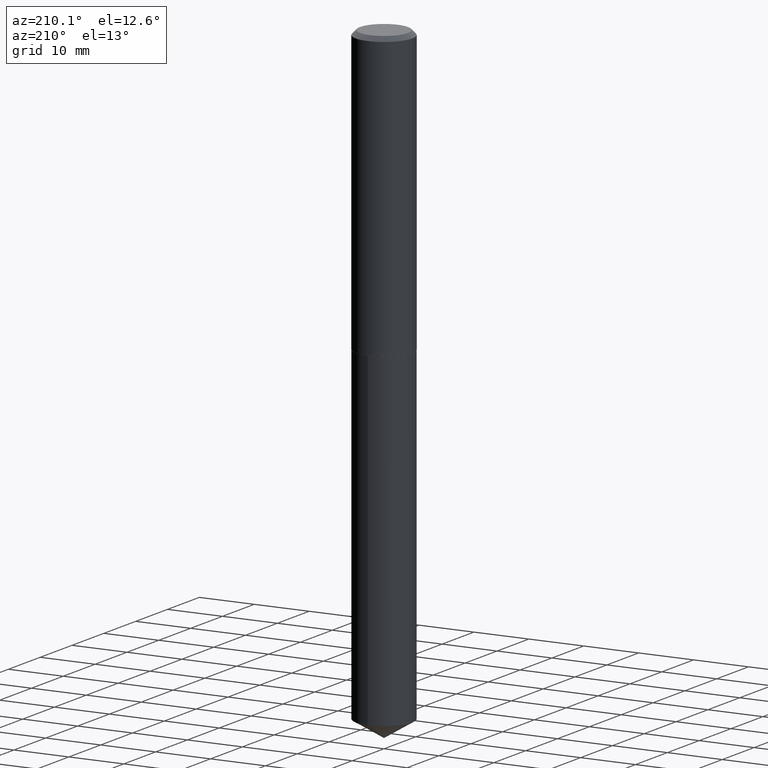
[diagram: clean part render]
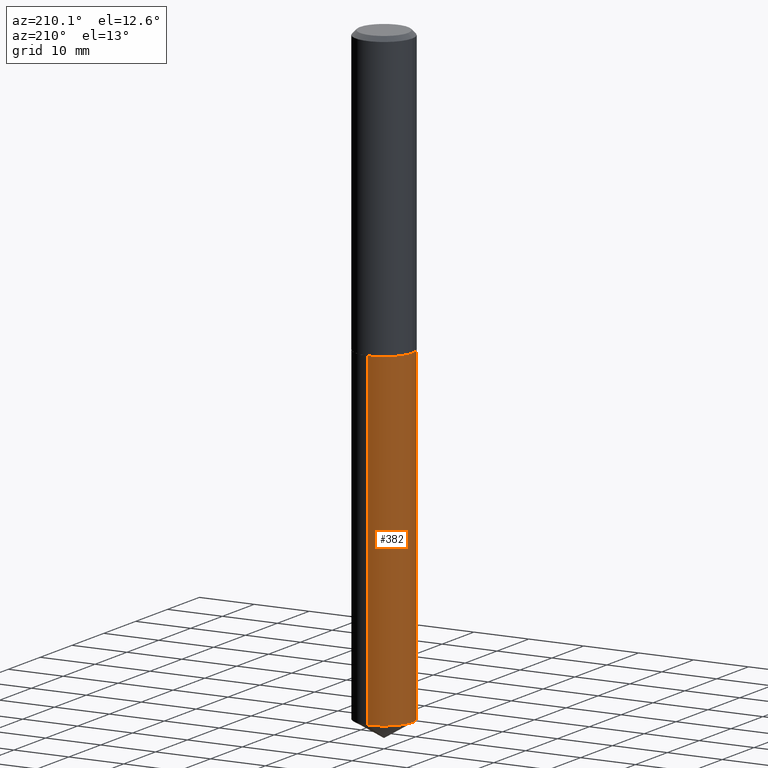
[diagram: same view with one face highlighted and labeled with its STEP entity id]
A machine part, auxiliary view. The second image highlights one B-rep face of the part: STEP entity #382.
In plain terms, the highlighted cylindrical surface (edge-blend (fillet) strip) has radius 5.1587 mm, axis along (-0, 0, 1).
Its self-contained STEP definition (entity closure, byte-faithful):
#10 = VERTEX_POINT ( 'NONE', #23 ) ;
#18 = EDGE_CURVE ( 'NONE', #33, #188, #166, .T. ) ;
#20 = DIRECTION ( 'NONE',  ( -2.445399436939998011E-29, 3.491580679550436162E-15, 1.000000000000000000 ) ) ;
#23 = CARTESIAN_POINT ( 'NONE',  ( -1.418239719837973885E-15, -0.2031000000000152683, -4.377965208275502285 ) ) ;
#26 = DIRECTION ( 'NONE',  ( -6.982962677686266711E-15, -1.000000000000000000, 4.035225987687242674E-15 ) ) ;
#33 = VERTEX_POINT ( 'NONE', #289 ) ;
#42 = DIRECTION ( 'NONE',  ( -2.445399436939998011E-29, 3.491580679550436162E-15, 1.000000000000000000 ) ) ;
#56 = DIRECTION ( 'NONE',  ( -6.982962677686266711E-15, -1.000000000000000000, 2.690150658458161520E-15 ) ) ;
#63 = CARTESIAN_POINT ( 'NONE',  ( 1.443112296328870782E-15, 0.2030999999999928973, -2.031200000000001449 ) ) ;
#74 = CYLINDRICAL_SURFACE ( 'NONE', #144, 0.2031000000000000028 ) ;
#86 = LINE ( 'NONE', #321, #297 ) ;
#99 = ORIENTED_EDGE ( 'NONE', *, *, #18, .F. ) ;
#106 = EDGE_CURVE ( 'NONE', #10, #368, #86, .T. ) ;
#110 = DIRECTION ( 'NONE',  ( -2.445399436939998011E-29, 3.491580679550436162E-15, 1.000000000000000000 ) ) ;
#118 = EDGE_CURVE ( 'NONE', #33, #10, #320, .T. ) ;
#144 = AXIS2_PLACEMENT_3D ( 'NONE', #193, #42, #154 ) ;
#145 = CARTESIAN_POINT ( 'NONE',  ( 1.443112296328812998E-15, 0.2030999999999928973, -2.031200000000001449 ) ) ;
#154 = DIRECTION ( 'NONE',  ( -6.982962677686266711E-15, -1.000000000000000000, 4.035225987687242674E-15 ) ) ;
#155 = CIRCLE ( 'NONE', #281, 0.2031000000000000028 ) ;
#166 = LINE ( 'NONE', #145, #336 ) ;
#172 = EDGE_LOOP ( 'NONE', ( #99, #344, #227, #249 ) ) ;
#188 = VERTEX_POINT ( 'NONE', #63 ) ;
#190 = FACE_OUTER_BOUND ( 'NONE', #172, .T. ) ;
#193 = CARTESIAN_POINT ( 'NONE',  ( 4.967236239123250441E-29, -7.091896895458199299E-15, -2.031200000000000561 ) ) ;
#227 = ORIENTED_EDGE ( 'NONE', *, *, #106, .T. ) ;
#236 = CARTESIAN_POINT ( 'NONE',  ( 1.070601455807054017E-28, -1.528581695611409890E-14, -4.377965208275502285 ) ) ;
#249 = ORIENTED_EDGE ( 'NONE', *, *, #309, .F. ) ;
#265 = DIRECTION ( 'NONE',  ( -2.445399436939998011E-29, 3.491580679550436162E-15, 1.000000000000000000 ) ) ;
#281 = AXIS2_PLACEMENT_3D ( 'NONE', #388, #265, #26 ) ;
#289 = CARTESIAN_POINT ( 'NONE',  ( 1.443112296328870388E-15, 0.2030999999999847094, -4.377965208275503173 ) ) ;
#297 = VECTOR ( 'NONE', #110, 39.37007874015748143 ) ;
#309 = EDGE_CURVE ( 'NONE', #188, #368, #155, .T. ) ;
#320 = CIRCLE ( 'NONE', #370, 0.2031000000000000028 ) ;
#321 = CARTESIAN_POINT ( 'NONE',  ( -1.418239719838031077E-15, -0.2031000000000071082, -2.031199999999999672 ) ) ;
#336 = VECTOR ( 'NONE', #20, 39.37007874015748143 ) ;
#344 = ORIENTED_EDGE ( 'NONE', *, *, #118, .T. ) ;
#356 = DIRECTION ( 'NONE',  ( -2.445399436939998011E-29, 3.491580679550436162E-15, 1.000000000000000000 ) ) ;
#367 = CARTESIAN_POINT ( 'NONE',  ( -1.418239719838031077E-15, -0.2031000000000071082, -2.031199999999999672 ) ) ;
#368 = VERTEX_POINT ( 'NONE', #367 ) ;
#370 = AXIS2_PLACEMENT_3D ( 'NONE', #236, #356, #56 ) ;
#382 = ADVANCED_FACE ( 'NONE', ( #190 ), #74, .T. ) ;
#388 = CARTESIAN_POINT ( 'NONE',  ( 4.967236239123250441E-29, -7.091896895458199299E-15, -2.031200000000000561 ) ) ;